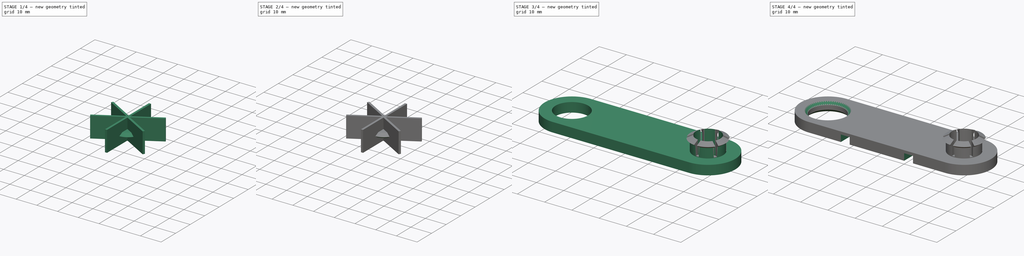
[diagram: build sequence overview — one tinted view per stage of 4, left to right]
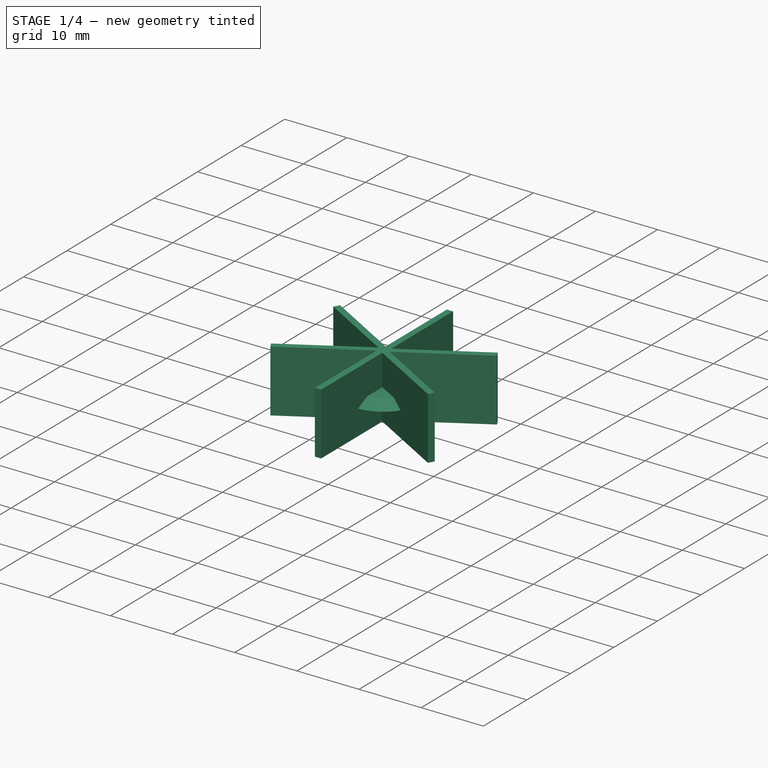
[diagram: stage 1 of 4 — iso view after this stage's code; geometry added in this stage tinted green]
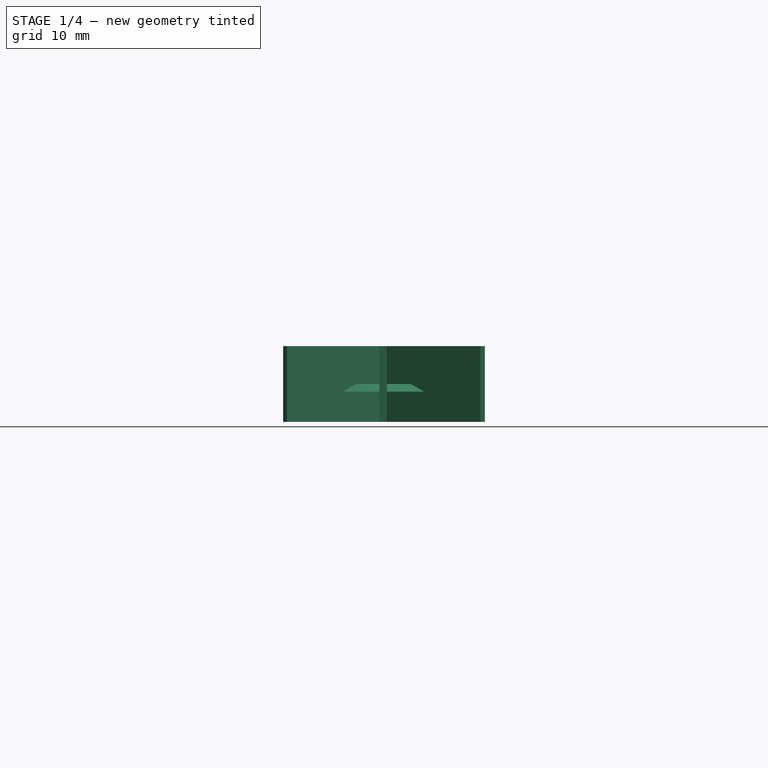
[diagram: stage 1 of 4 — front view after this stage's code; geometry added in this stage tinted green]
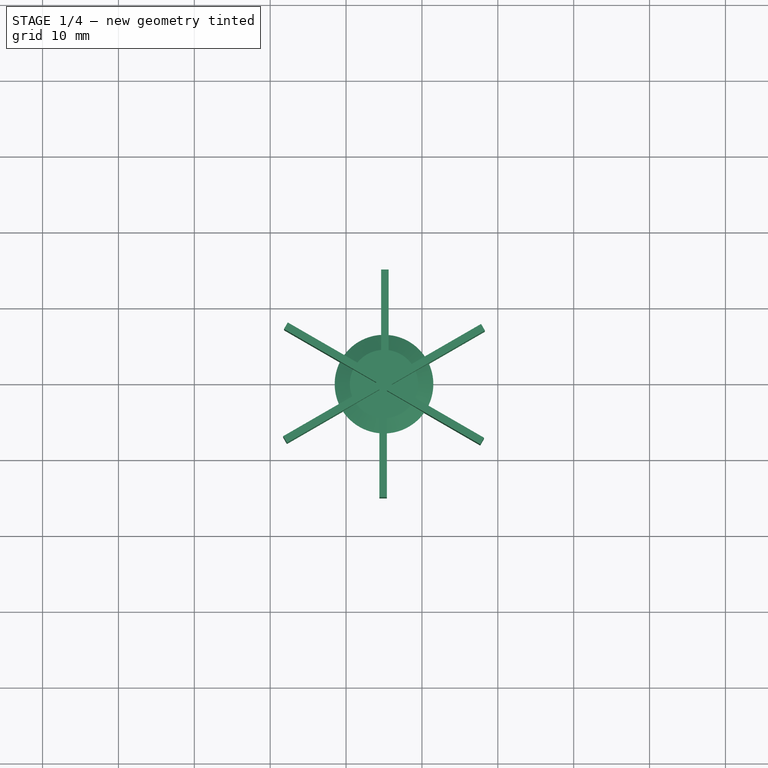
[diagram: stage 1 of 4 — top view after this stage's code; geometry added in this stage tinted green]
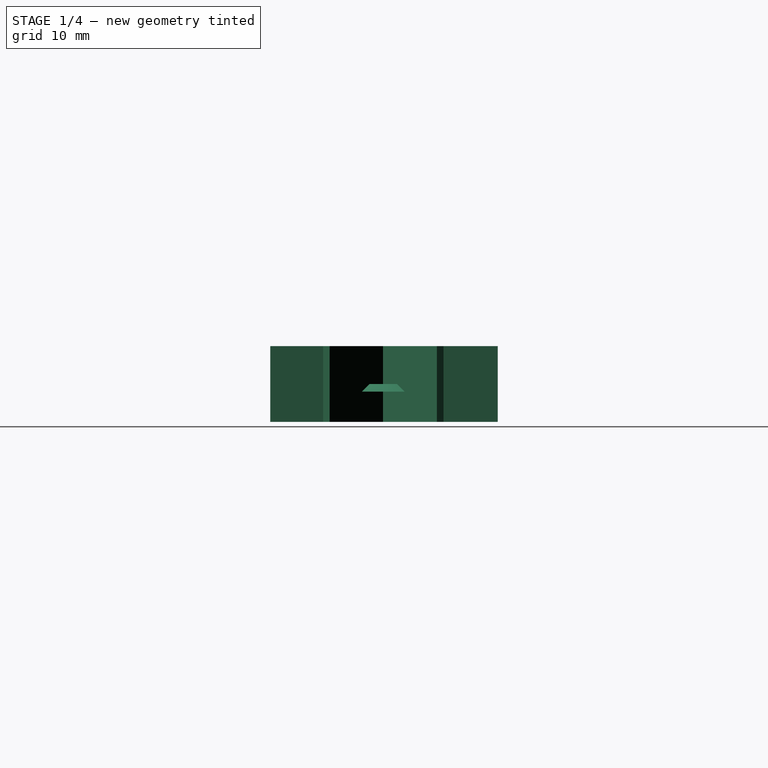
[diagram: stage 1 of 4 — right view after this stage's code; geometry added in this stage tinted green]
FCSTD DOCUMENT  (FreeCAD 0.16R5919 (Git))
Label: pentographe
License: CreativeCommons Attribution
LicenseURL: http://creativecommons.org/licenses/by/4.0/
objects: Sketcher::SketchObject×10, PartDesign::Pad×3, PartDesign::Pocket×3, Part::Loft×2, Part::MultiFuse×2, Part::FeaturePython×1, Part::Cut×1, PartDesign::Chamfer×1
note: 29 computed .brp shape members not serialized (recipe doc carries the construction recipe); baked Part::Feature solids carry a one-line shape summary decoded from their .brp

FEATURE [Sketcher::SketchObject] Sketch004  label="topMoyex"
  Placement = pos=(0,0,7) rot=(0,0,1;0rad)
  sketch-geometry (1):
    g0: Circle CenterX=25 CenterY=0 CenterZ=0 NormalX=0 NormalY=0 NormalZ=1 Radius=4.5
  constraints (3):
    c: Radius(g0) = 4.5
    c: DistanceX(g0) = 25
    c: DistanceY(g0) = 0
FEATURE [Sketcher::SketchObject] Sketch005  label="midMoyeux001"
  Placement = pos=(0,0,6) rot=(0,0,1;0rad)
  sketch-geometry (1):
    g0: Circle CenterX=25 CenterY=0 CenterZ=0 NormalX=0 NormalY=0 NormalZ=1 Radius=6.5
  constraints (3):
    c: Radius(g0) = 6.5
    c: DistanceX(g0) = 25
    c: DistanceY(g0) = 0
FEATURE [Part::Loft] Loft001
  Closed = false
  Ruled = true
  Sections = -> [Sketch005,Sketch004]
  Solid = true
FEATURE [Sketcher::SketchObject] Sketch007
  Placement = pos=(0,0,2) rot=(0,0,1;0rad)
  sketch-geometry (4):
    g0: LineSegment StartX=24.6134 StartY=15 StartZ=0 EndX=25.6134 EndY=15 EndZ=0
    g1: LineSegment StartX=25.6134 StartY=15 StartZ=0 EndX=25.6134 EndY=0 EndZ=0
    g2: LineSegment StartX=25.6134 StartY=0 StartZ=0 EndX=24.6134 EndY=0 EndZ=0
    g3: LineSegment StartX=24.6134 StartY=0 StartZ=0 EndX=24.6134 EndY=15 EndZ=0
  constraints (11):
    c: Coincident(g0,g1)
    c: Coincident(g1,g2)
    c: Coincident(g2,g3)
    c: Coincident(g3,g0)
    c: Horizontal(g0)
    c: Horizontal(g2)
    c: Vertical(g1)
    c: Vertical(g3)
    c: PointOnObject(g2,g-1)
    c: Distance(g1) = 15
    c: Distance(g0) = 1
FEATURE [PartDesign::Pad] Pad002
  Length = 10
  Length2 = 100
  Placement = pos=(0,0,2) rot=(0,0,1;0rad)
  Sketch = -> Sketch007
  Type = 0
FEATURE [Part::FeaturePython] Array  # Draft array (typed FeaturePython)
  Angle = 360
  ArrayType = 1
  Axis = (0,0,1)
  Base = -> Pad002
  Center = (25,0,0)
  Fuse = true
  IntervalAxis = (0,0,0)
  IntervalX = (1,0,0)
  IntervalY = (0,1,0)
  IntervalZ = (0,0,0)
  NumberPolar = 6
  NumberX = 2
  NumberY = 2
  NumberZ = 1
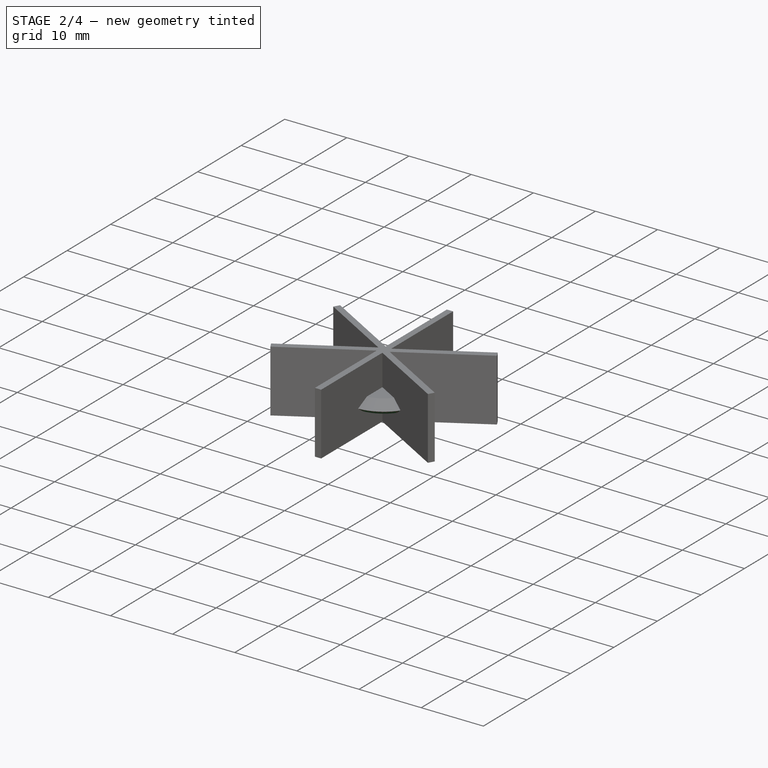
[diagram: stage 2 of 4 — iso view after this stage's code; geometry added in this stage tinted green]
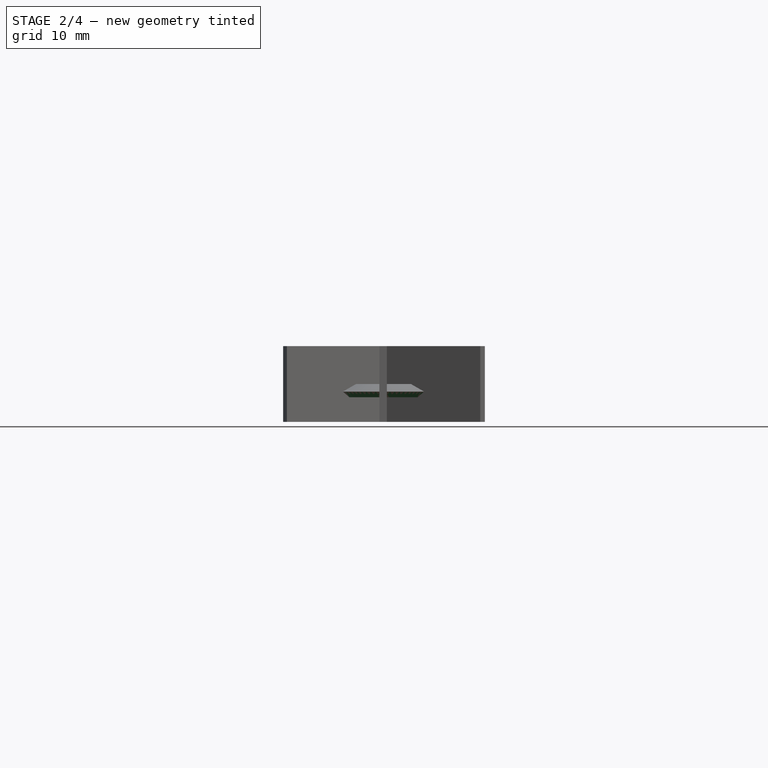
[diagram: stage 2 of 4 — front view after this stage's code; geometry added in this stage tinted green]
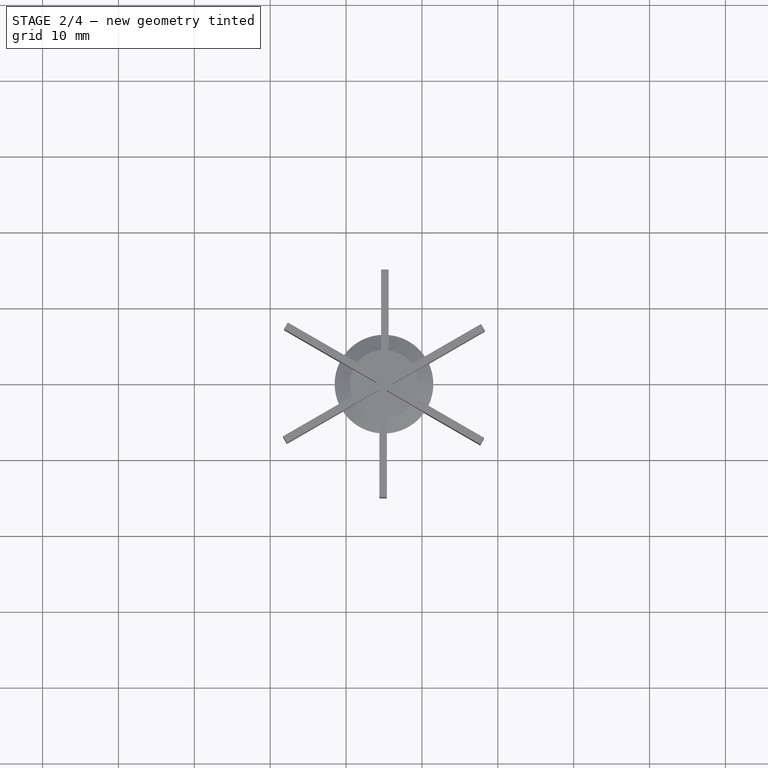
[diagram: stage 2 of 4 — top view after this stage's code; geometry added in this stage tinted green]
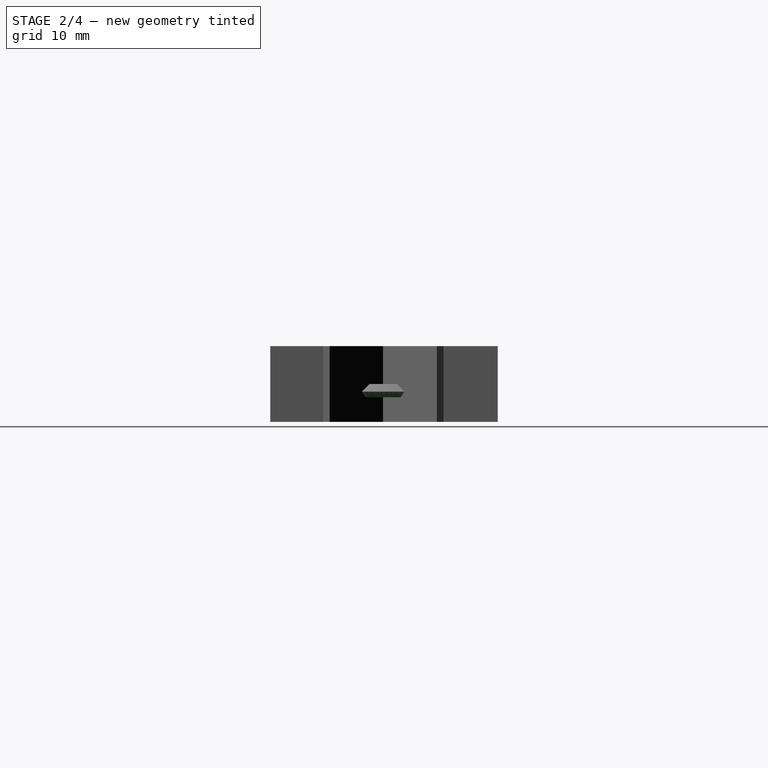
[diagram: stage 2 of 4 — right view after this stage's code; geometry added in this stage tinted green]
FEATURE [Sketcher::SketchObject] Sketch
  sketch-geometry (5):
    g0: ArcOfCircle CenterX=-25 CenterY=0 CenterZ=0 NormalX=0 NormalY=0 NormalZ=1 Radius=10 StartAngle=1.5708 EndAngle=4.71239
    g1: ArcOfCircle CenterX=25 CenterY=0 CenterZ=0 NormalX=0 NormalY=0 NormalZ=1 Radius=10 StartAngle=4.71239 EndAngle=7.85398
    g2: LineSegment StartX=-25 StartY=-10 StartZ=0 EndX=25 EndY=-10 EndZ=0
    g3: LineSegment StartX=-25 StartY=10 StartZ=0 EndX=25 EndY=10 EndZ=0
    g4: Circle CenterX=-25 CenterY=0 CenterZ=0 NormalX=0 NormalY=0 NormalZ=1 Radius=6
  constraints (11):
    c: Tangent(g0,g3) = 1.5708
    c: Tangent(g0,g2) = -1.5708
    c: Tangent(g2,g1) = -1.5708
    c: Tangent(g3,g1) = 1.5708
    c: Horizontal(g2)
    c: Symmetric(g1,g0,g-2)
    c: Symmetric(g0,g0,g-1)
    c: Radius(g0) = 10
    c: Coincident(g4,g0)
    c: Radius(g4) = 6
    c: Distance(g3) = 50
FEATURE [PartDesign::Pad] Pad  label="basePento"
  Length = 3.5
  Length2 = 100
  Midplane = true
  Sketch = -> Sketch
  Type = 0
FEATURE [Sketcher::SketchObject] Sketch001
  ExternalGeometry = -> [Pad]
  Placement = pos=(0,0,1.75) rot=(0,0,1;0rad)
  Support = -> Pad [Face7]
  sketch-geometry (1):
    g0: Circle CenterX=25 CenterY=-1e-12 CenterZ=0 NormalX=0 NormalY=0 NormalZ=1 Radius=5.5
  constraints (2):
    c: Coincident(g0,g-3)
    c: Radius(g0) = 5.5
FEATURE [PartDesign::Pad] Pad001  label="baseMoyeux"
  Length = 3.5
  Length2 = 100
  Sketch = -> Sketch001
  Type = 0
FEATURE [Sketcher::SketchObject] Sketch002  label="midMoyeux"
  Placement = pos=(0,0,6) rot=(0,0,1;0rad)
  sketch-geometry (1):
    g0: Circle CenterX=25 CenterY=0 CenterZ=0 NormalX=0 NormalY=0 NormalZ=1 Radius=6.5
  constraints (3):
    c: Radius(g0) = 6.5
    c: DistanceX(g0) = 25
    c: DistanceY(g0) = 0
FEATURE [Sketcher::SketchObject] Sketch003  label="moyeux"
  ExternalGeometry = -> [Pad001]
  Placement = pos=(0,0,5.25) rot=(0,0,1;0rad)
  Support = -> Pad001 [Face9]
  sketch-geometry (1):
    g0: Circle CenterX=25 CenterY=-1e-12 CenterZ=0 NormalX=0 NormalY=0 NormalZ=1 Radius=5.5
  constraints (2):
    c: Coincident(g0,g-3)
    c: Equal(g0,g-3)
FEATURE [Part::Loft] Loft
  Closed = false
  Ruled = true
  Sections = -> [Sketch003,Sketch002]
  Solid = true
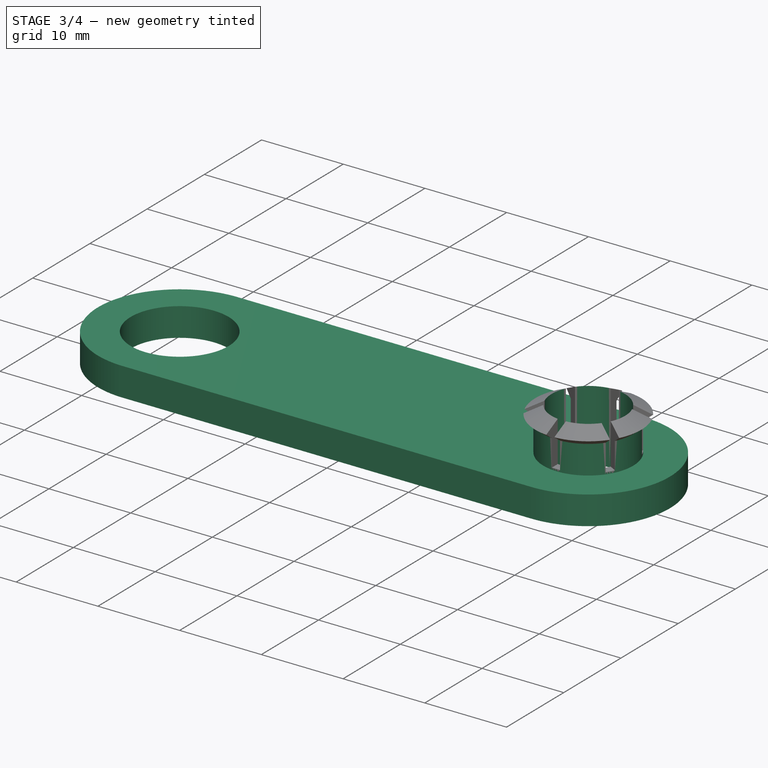
[diagram: stage 3 of 4 — iso view after this stage's code; geometry added in this stage tinted green]
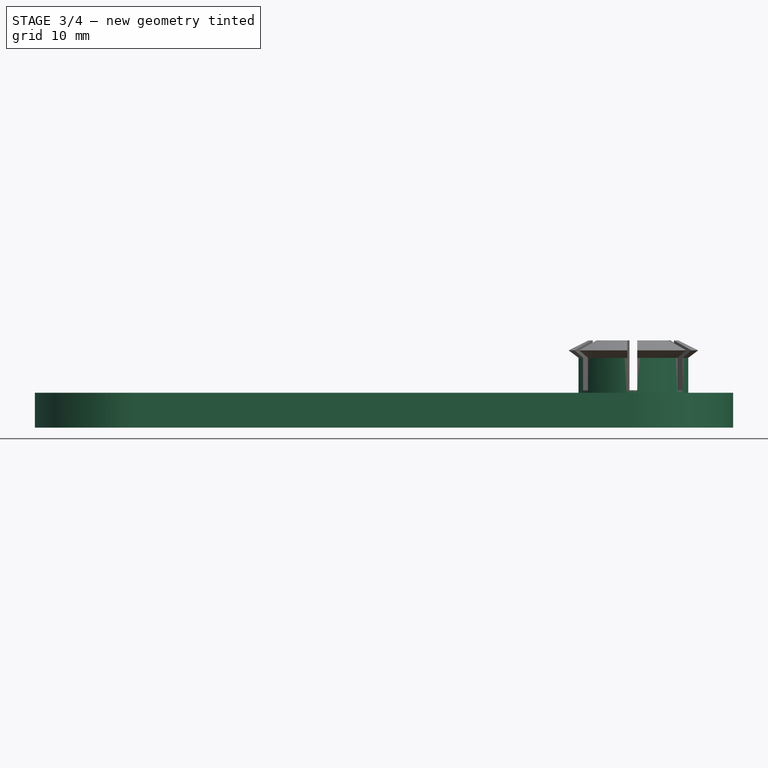
[diagram: stage 3 of 4 — front view after this stage's code; geometry added in this stage tinted green]
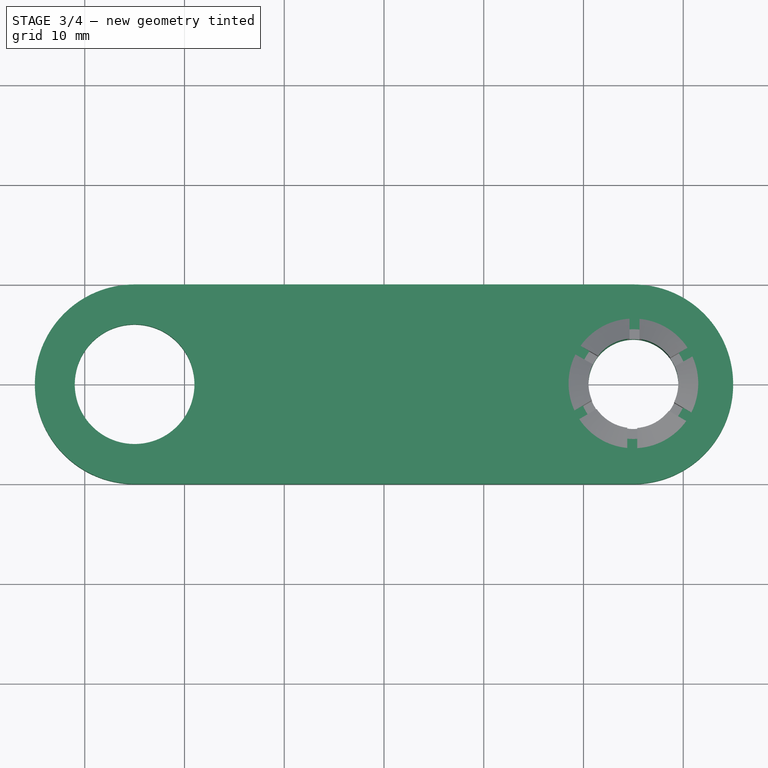
[diagram: stage 3 of 4 — top view after this stage's code; geometry added in this stage tinted green]
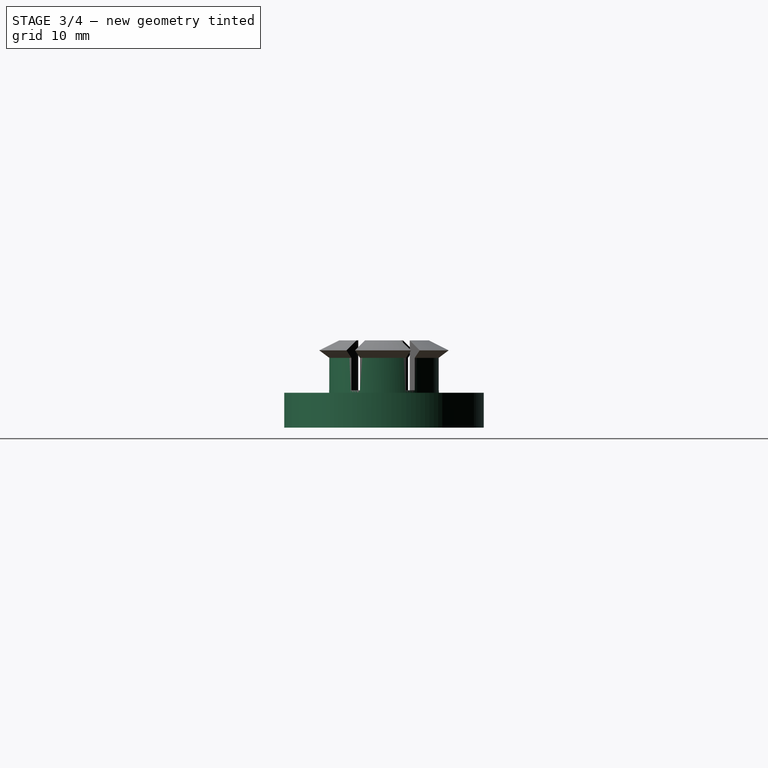
[diagram: stage 3 of 4 — right view after this stage's code; geometry added in this stage tinted green]
FEATURE [Part::MultiFuse] Fusion
  Shapes = -> [Pad001,Loft]
FEATURE [Part::MultiFuse] Fusion001
  Shapes = -> [Fusion,Loft001]
FEATURE [Sketcher::SketchObject] Sketch006
  ExternalGeometry = -> [Fusion001]
  Placement = pos=(0,0,7) rot=(0,0,1;0rad)
  Support = -> Fusion001 [Face1]
  sketch-geometry (1):
    g0: Circle CenterX=25 CenterY=0 CenterZ=0 NormalX=0 NormalY=0 NormalZ=1 Radius=4.5
  constraints (2):
    c: Coincident(g0,g-3)
    c: Equal(g0,g-3)
FEATURE [PartDesign::Pocket] Pocket  label="moyeux001"
  Length = 5
  Sketch = -> Sketch006
  Type = 1
FEATURE [Part::Cut] Cut
  Base = -> Pocket
  Tool = -> Array
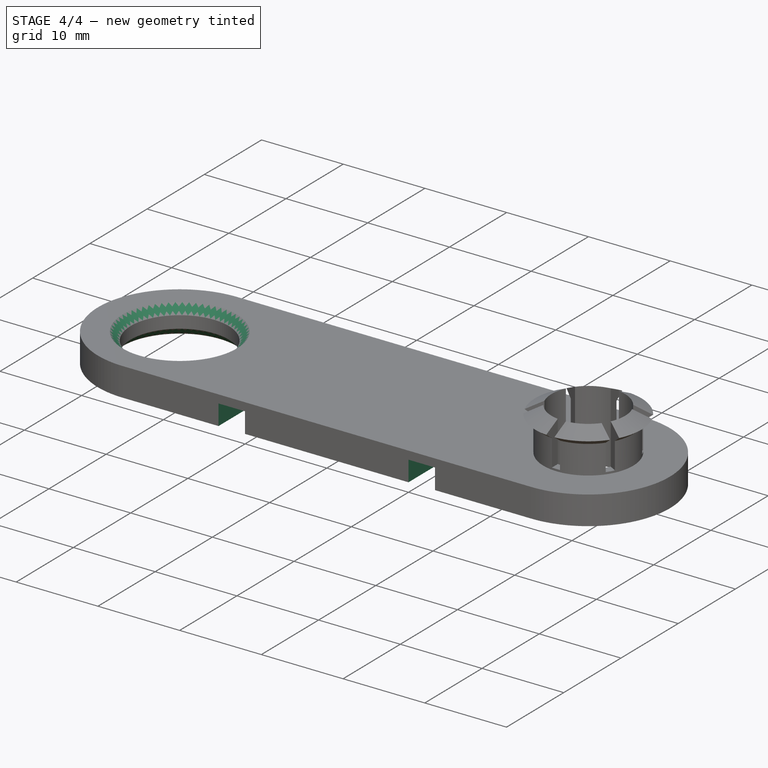
[diagram: stage 4 of 4 — iso view after this stage's code; geometry added in this stage tinted green]
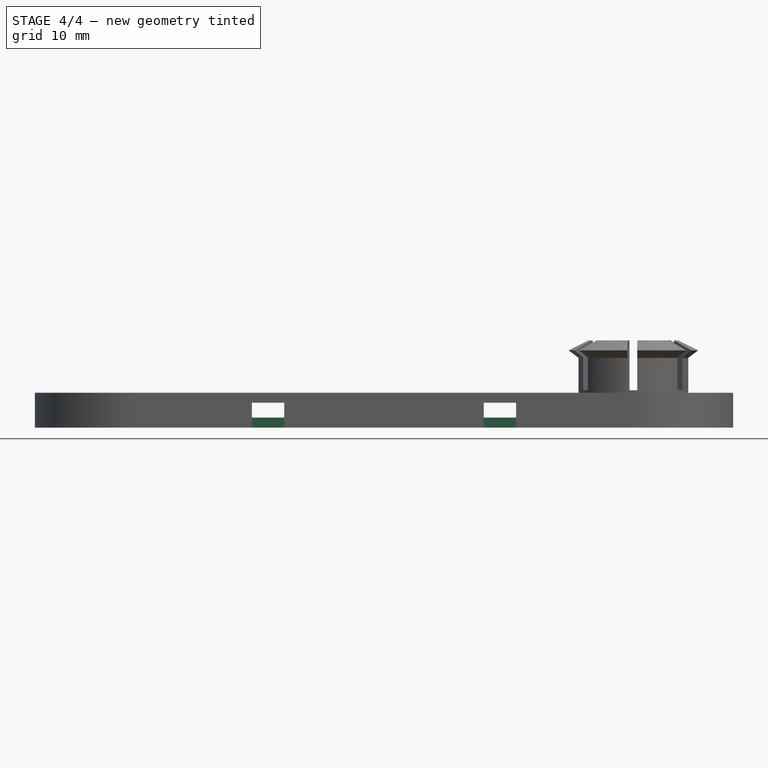
[diagram: stage 4 of 4 — front view after this stage's code; geometry added in this stage tinted green]
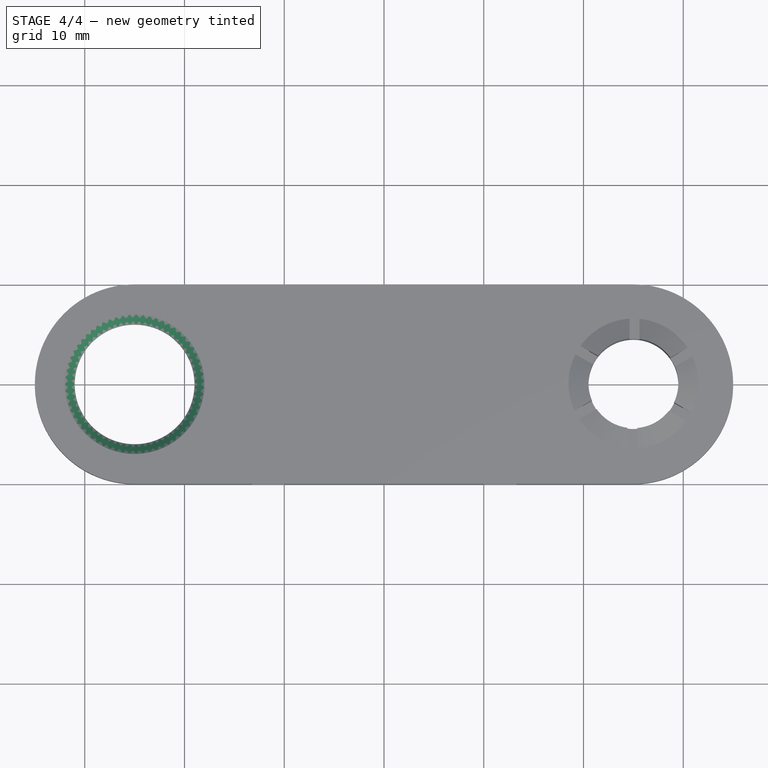
[diagram: stage 4 of 4 — top view after this stage's code; geometry added in this stage tinted green]
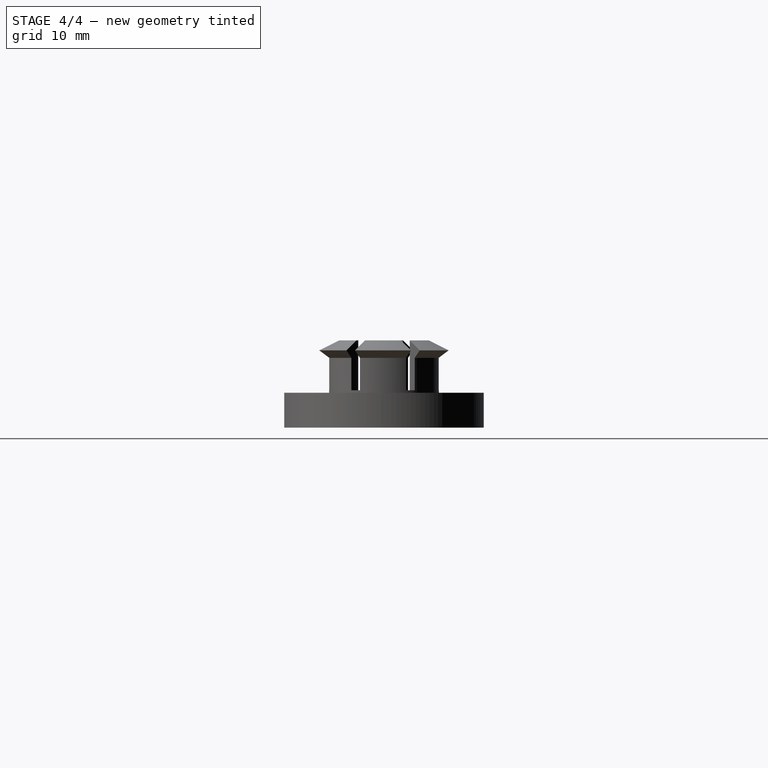
[diagram: stage 4 of 4 — right view after this stage's code; geometry added in this stage tinted green]
FEATURE [PartDesign::Chamfer] Chamfer
  Base = -> Cut [Edge114,Edge46]
  Size = 1
FEATURE [Sketcher::SketchObject] Sketch008
  Placement = pos=(0,-10,0) rot=(1,0,0;1.5708rad)
  Support = -> Chamfer [Face5]
  sketch-geometry (8):
    g0: LineSegment StartX=-13.25 StartY=0.75 StartZ=0 EndX=-10 EndY=0.75 EndZ=0
    g1: LineSegment StartX=-10 StartY=0.75 StartZ=0 EndX=-10 EndY=-0.75 EndZ=0
    g2: LineSegment StartX=-10 StartY=-0.75 StartZ=0 EndX=-13.25 EndY=-0.75 EndZ=0
    g3: LineSegment StartX=-13.25 StartY=-0.75 StartZ=0 EndX=-13.25 EndY=0.75 EndZ=0
    g4: LineSegment StartX=10 StartY=0.75 StartZ=0 EndX=13.25 EndY=0.75 EndZ=0
    g5: LineSegment StartX=13.25 StartY=0.75 StartZ=0 EndX=13.25 EndY=-0.75 EndZ=0
    g6: LineSegment StartX=13.25 StartY=-0.75 StartZ=0 EndX=10 EndY=-0.75 EndZ=0
    g7: LineSegment StartX=10 StartY=-0.75 StartZ=0 EndX=10 EndY=0.75 EndZ=0
  constraints (23):
    c: Coincident(g0,g1)
    c: Coincident(g1,g2)
    c: Coincident(g2,g3)
    c: Coincident(g3,g0)
    c: Horizontal(g0)
    c: Horizontal(g2)
    c: Vertical(g1)
    c: Vertical(g3)
    c: Coincident(g4,g5)
    c: Coincident(g5,g6)
    c: Coincident(g6,g7)
    c: Coincident(g7,g4)
    c: Horizontal(g4)
    c: Horizontal(g6)
    c: Vertical(g5)
    c: Vertical(g7)
    c: Symmetric(g6,g1,g-2)
    c: Equal(g2,g6)
    c: DistanceX(g-2,g1) = -10
    c: Distance(g2) = 3.25
    c: PointOnObject(g4,g0)
    c: Symmetric(g0,g2,g-1)
    c: Distance(g3) = 1.5
FEATURE [PartDesign::Pocket] Pocket001
  Length = 5
  Sketch = -> Sketch008
  Type = 1
FEATURE [Sketcher::SketchObject] Sketch009
  Placement = pos=(0,0,-1.75) rot=(1,0,0;3.14159rad)
  Support = -> Pocket001 [Face1]
  sketch-geometry (16):
    g0: LineSegment StartX=-13.25 StartY=12.5 StartZ=0 EndX=-10 EndY=12.5 EndZ=0
    g1: LineSegment StartX=-10 StartY=12.5 StartZ=0 EndX=-10 EndY=2.5 EndZ=0
    g2: LineSegment StartX=-10 StartY=2.5 StartZ=0 EndX=-13.25 EndY=2.5 EndZ=0
    g3: LineSegment StartX=-13.25 StartY=2.5 StartZ=0 EndX=-13.25 EndY=12.5 EndZ=0
    g4: LineSegment StartX=-13.25 StartY=-2.5 StartZ=0 EndX=-10 EndY=-2.5 EndZ=0
    g5: LineSegment StartX=-10 StartY=-2.5 StartZ=0 EndX=-10 EndY=-12.5 EndZ=0
    g6: LineSegment StartX=-10 StartY=-12.5 StartZ=0 EndX=-13.25 EndY=-12.5 EndZ=0
    g7: LineSegment StartX=-13.25 StartY=-12.5 StartZ=0 EndX=-13.25 EndY=-2.5 EndZ=0
    g8: LineSegment StartX=10 StartY=12.5 StartZ=0 EndX=13.25 EndY=12.5 EndZ=0
    g9: LineSegment StartX=13.25 StartY=12.5 StartZ=0 EndX=13.25 EndY=2.5 EndZ=0
    g10: LineSegment StartX=13.25 StartY=2.5 StartZ=0 EndX=10 EndY=2.5 EndZ=0
    g11: LineSegment StartX=10 StartY=2.5 StartZ=0 EndX=10 EndY=12.5 EndZ=0
    g12: LineSegment StartX=10 StartY=-2.5 StartZ=0 EndX=13.25 EndY=-2.5 EndZ=0
    g13: LineSegment StartX=13.25 StartY=-2.5 StartZ=0 EndX=13.25 EndY=-12.5 EndZ=0
    g14: LineSegment StartX=13.25 StartY=-12.5 StartZ=0 EndX=10 EndY=-12.5 EndZ=0
    g15: LineSegment StartX=10 StartY=-12.5 StartZ=0 EndX=10 EndY=-2.5 EndZ=0
  constraints (48):
    c: Coincident(g0,g1)
    c: Coincident(g1,g2)
    c: Coincident(g2,g3)
    c: Coincident(g3,g0)
    c: Horizontal(g0)
    c: Horizontal(g2)
    c: Vertical(g1)
    c: Vertical(g3)
    c: Coincident(g4,g5)
    c: Coincident(g5,g6)
    c: Coincident(g6,g7)
    c: Coincident(g7,g4)
    c: Horizontal(g4)
    c: Horizontal(g6)
    c: Vertical(g5)
    c: Vertical(g7)
    c: Coincident(g8,g9)
    c: Coincident(g9,g10)
    c: Coincident(g10,g11)
    c: Coincident(g11,g8)
    c: Horizontal(g8)
    c: Horizontal(g10)
    c: Vertical(g9)
    c: Vertical(g11)
    c: Coincident(g12,g13)
    c: Coincident(g13,g14)
    c: Coincident(g14,g15)
    c: Coincident(g15,g12)
    c: Horizontal(g12)
    c: Horizontal(g14)
    c: Vertical(g13)
    c: Vertical(g15)
    c: Equal(g15,g5)
    c: Equal(g5,g1)
    c: Equal(g1,g11)
    c: Equal(g2,g4)
    c: Equal(g4,g12)
    c: Equal(g12,g10)
    c: PointOnObject(g2,g7)
    c: PointOnObject(g1,g10)
    c: PointOnObject(g5,g14)
    c: Symmetric(g0,g8,g-2)
    c: PointOnObject(g12,g11)
    c: Symmetric(g2,g4,g-1)
    c: Distance(g0) = 3.25
    c: DistanceX(g-2,g0) = -10
    c: DistanceY(g-1,g4) = -2.5
    c: Distance(g3) = 10
FEATURE [PartDesign::Pocket] Pocket002
  Length = 5
  Sketch = -> Sketch009
  Type = 2
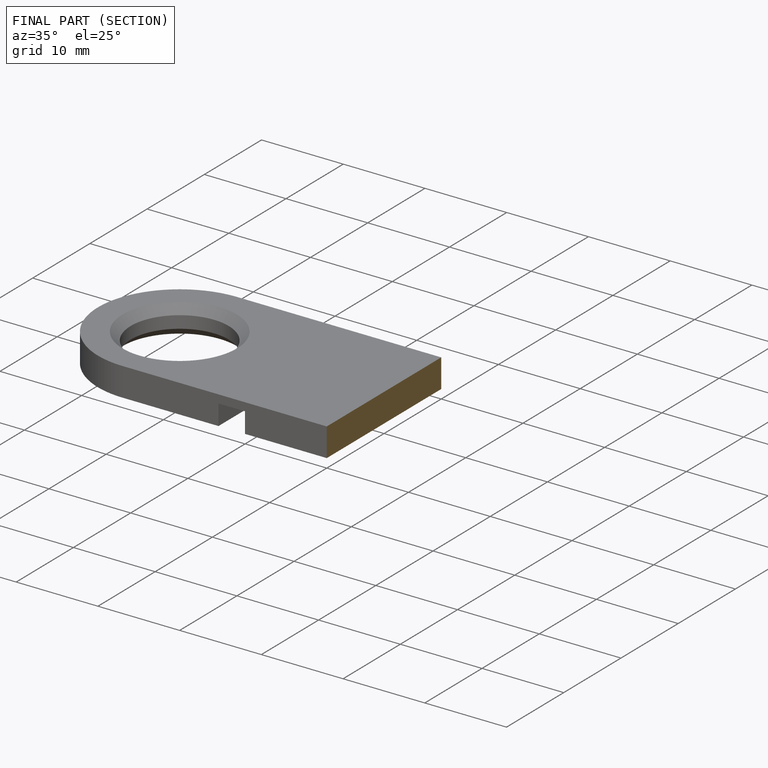
[diagram: finished part — half-section view (interior)]
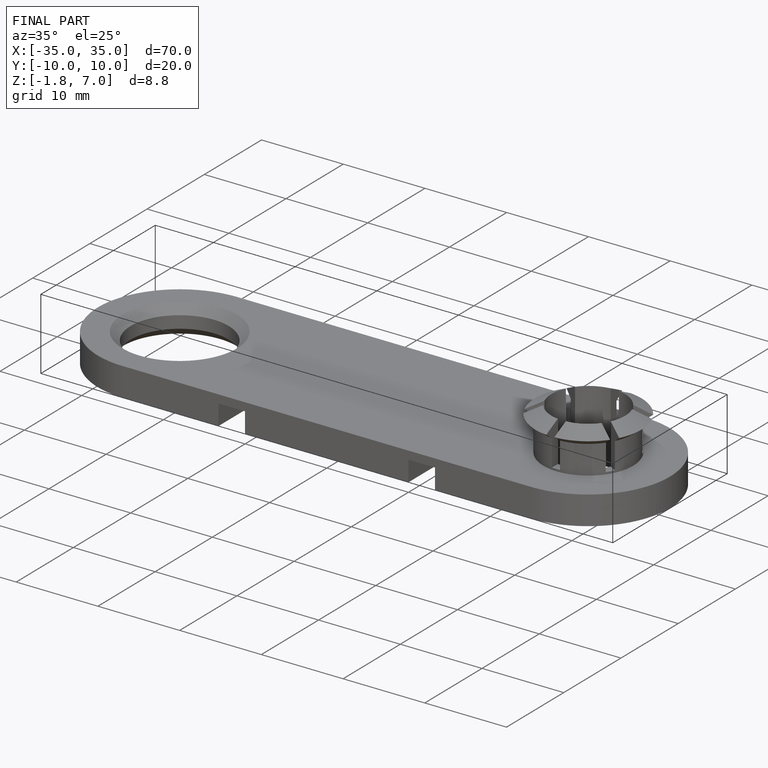
[diagram: finished part — iso view with bounding-box wireframe]
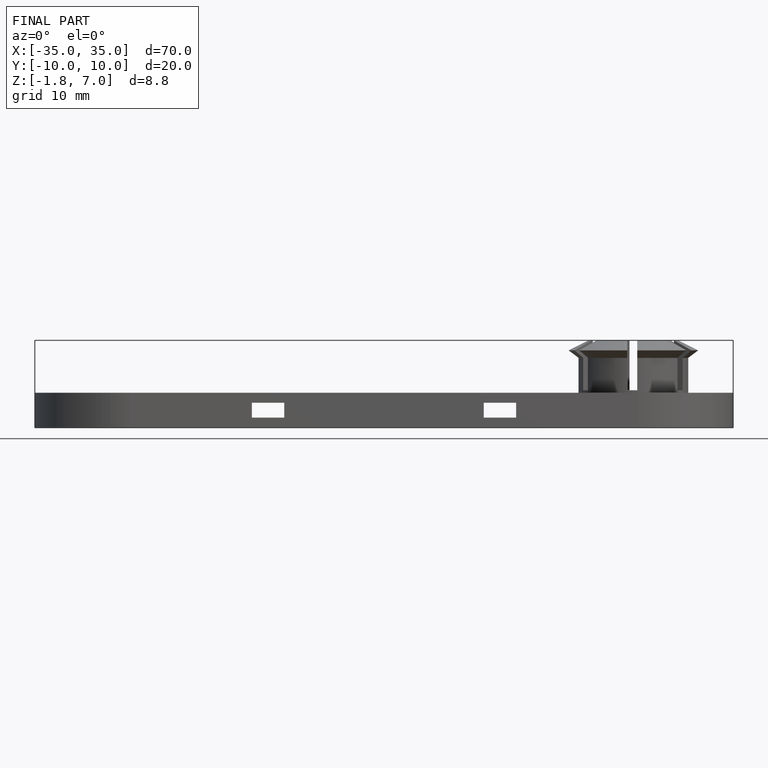
[diagram: finished part — front view with bounding-box wireframe]
